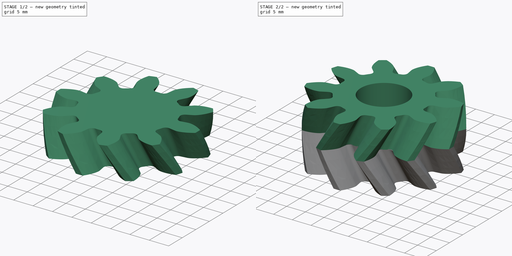
[diagram: build sequence overview — one tinted view per stage of 2, left to right]
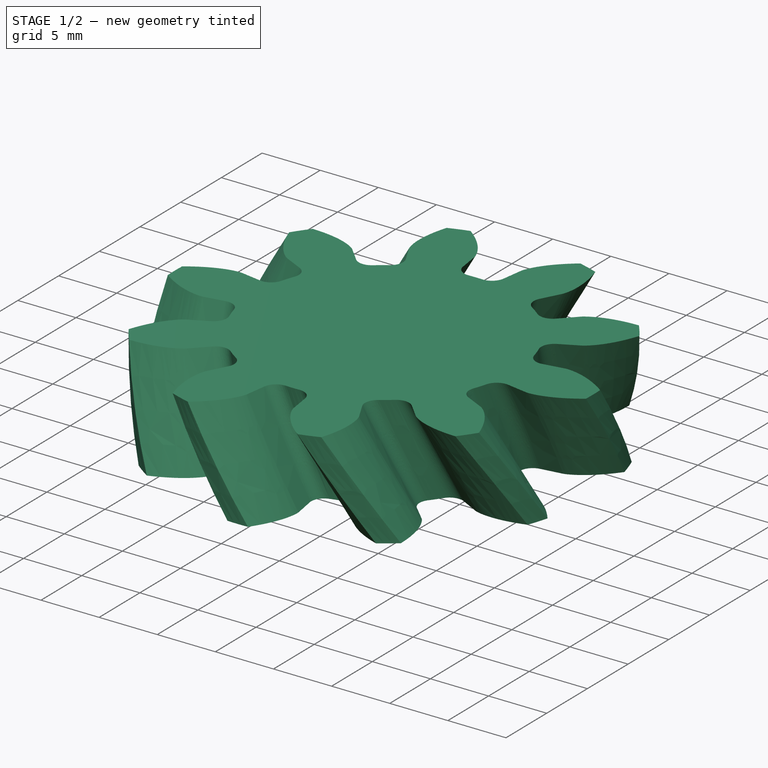
[diagram: stage 1 of 2 — iso view after this stage's code; geometry added in this stage tinted green]
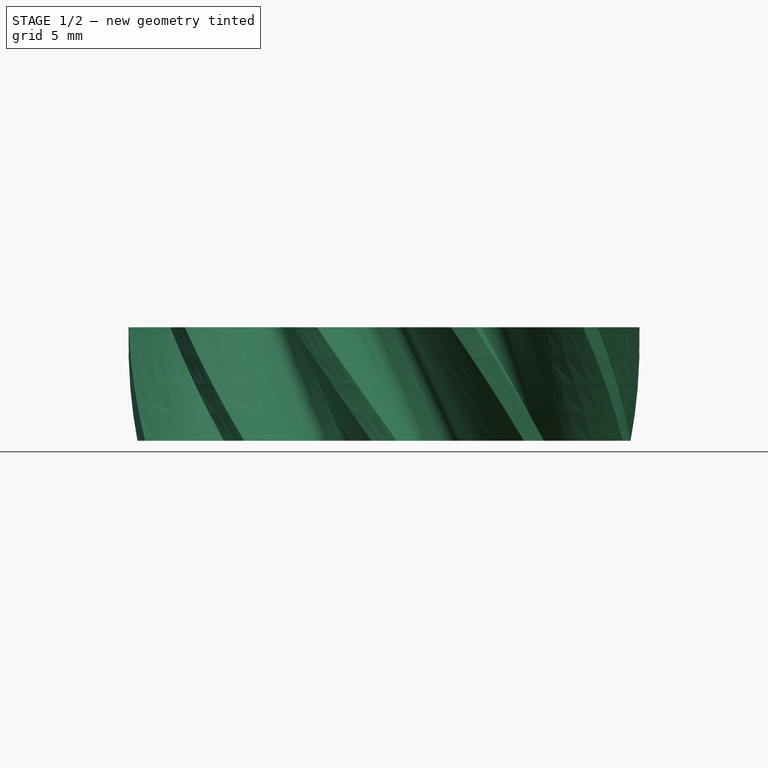
[diagram: stage 1 of 2 — front view after this stage's code; geometry added in this stage tinted green]
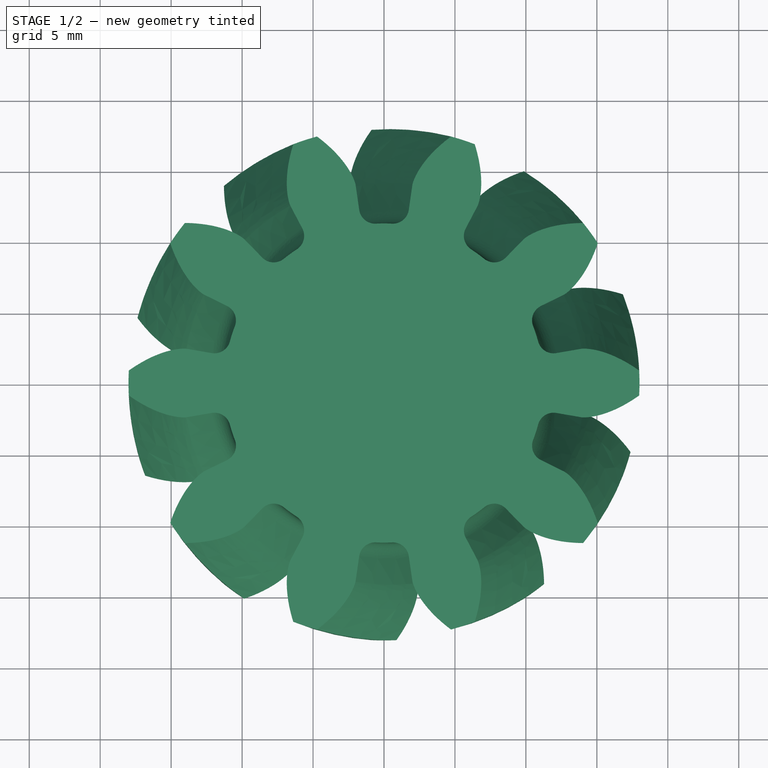
[diagram: stage 1 of 2 — top view after this stage's code; geometry added in this stage tinted green]
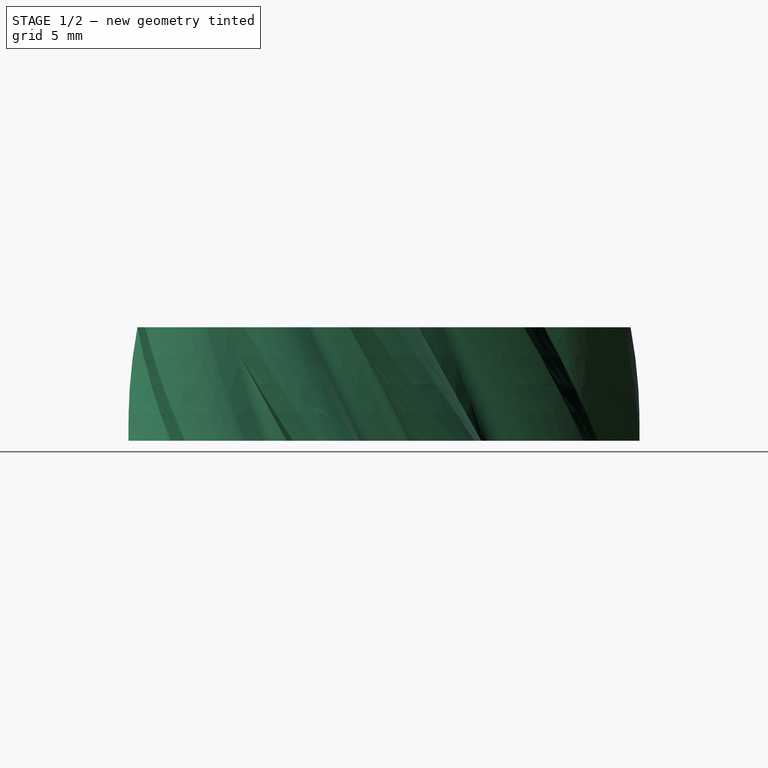
[diagram: stage 1 of 2 — right view after this stage's code; geometry added in this stage tinted green]
FCSTD DOCUMENT  (FreeCAD 0.16R6703 (Git))
Label: Chevron Gear Rotor 10 Th
License: FreeArt
LicenseURL: http://artlibre.org/licence/lal
objects: Part::Part2DObjectPython×5, Part::Loft×1, Part::Mirroring×1, Part::MultiFuse×1, Sketcher::SketchObject×1, PartDesign::Pocket×1
note: 11 computed .brp shape members not serialized (recipe doc carries the construction recipe); baked Part::Feature solids carry a one-line shape summary decoded from their .brp

FEATURE [Part::Part2DObjectPython] InvoluteGear  # Draft 2D object (typed FeaturePython)
  ExternalGear = true
  HighPrecision = true
  Modules = 3
  NumberOfTeeth = 10
  PressureAngle = 20
FEATURE [Part::Part2DObjectPython] Clone2D  label="Clone of InvoluteGear (2D)"  # Draft 2D object (typed FeaturePython)
  Objects = -> [InvoluteGear]
  Placement = pos=(0,0,2) rot=(0,0,1;0.07854rad)
  Scale = (1,1,1)
FEATURE [Part::Part2DObjectPython] Clone2D001  label="Clone of InvoluteGear (2D)001"  # Draft 2D object (typed FeaturePython)
  Objects = -> [InvoluteGear]
  Placement = pos=(0,0,4) rot=(0,0,1;0.15708rad)
  Scale = (1,1,1)
FEATURE [Part::Part2DObjectPython] Clone2D002  label="Clone of InvoluteGear (2D)002"  # Draft 2D object (typed FeaturePython)
  Objects = -> [InvoluteGear]
  Placement = pos=(0,0,6) rot=(0,0,1;0.235619rad)
  Scale = (1,1,1)
FEATURE [Part::Part2DObjectPython] Clone2D003  label="Clone of InvoluteGear (2D)003"  # Draft 2D object (typed FeaturePython)
  Objects = -> [InvoluteGear]
  Placement = pos=(0,0,8) rot=(0,0,1;0.314159rad)
  Scale = (1,1,1)
FEATURE [Part::Loft] Loft
  Closed = false
  Ruled = false
  Sections = -> [InvoluteGear,Clone2D,Clone2D001,Clone2D002,Clone2D003]
  Solid = true
FEATURE [Part::Mirroring] Part__Mirroring  label="Loft (Mirror #1)"
  Base = (0,0,0)
  Normal = (0,0,1)
  Source = -> Loft
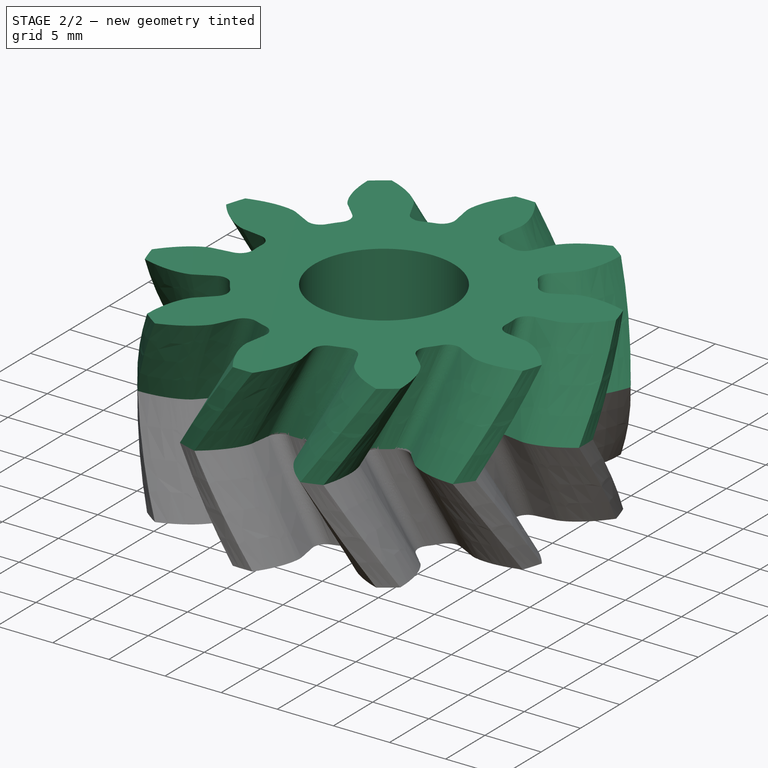
[diagram: stage 2 of 2 — iso view after this stage's code; geometry added in this stage tinted green]
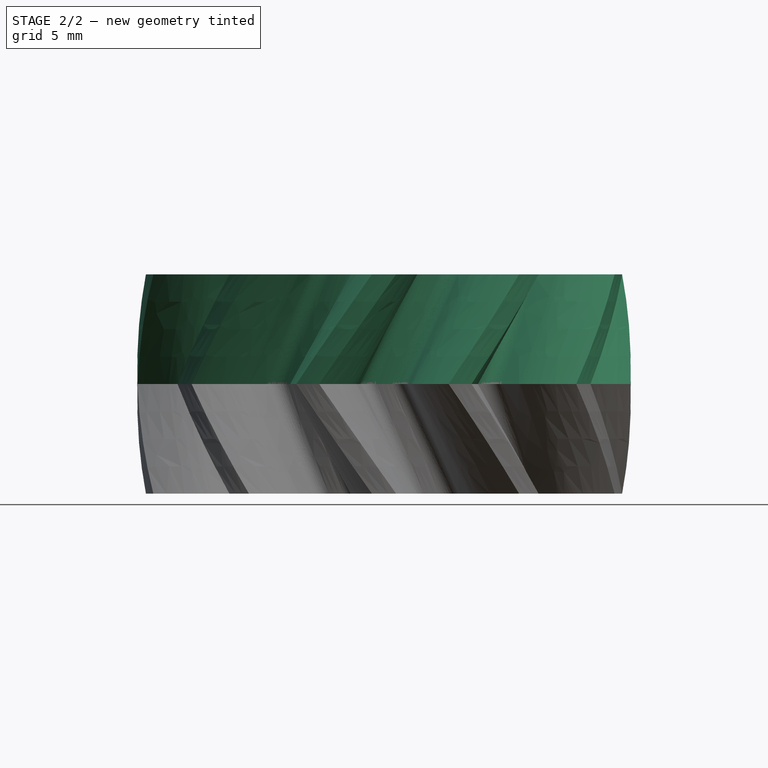
[diagram: stage 2 of 2 — front view after this stage's code; geometry added in this stage tinted green]
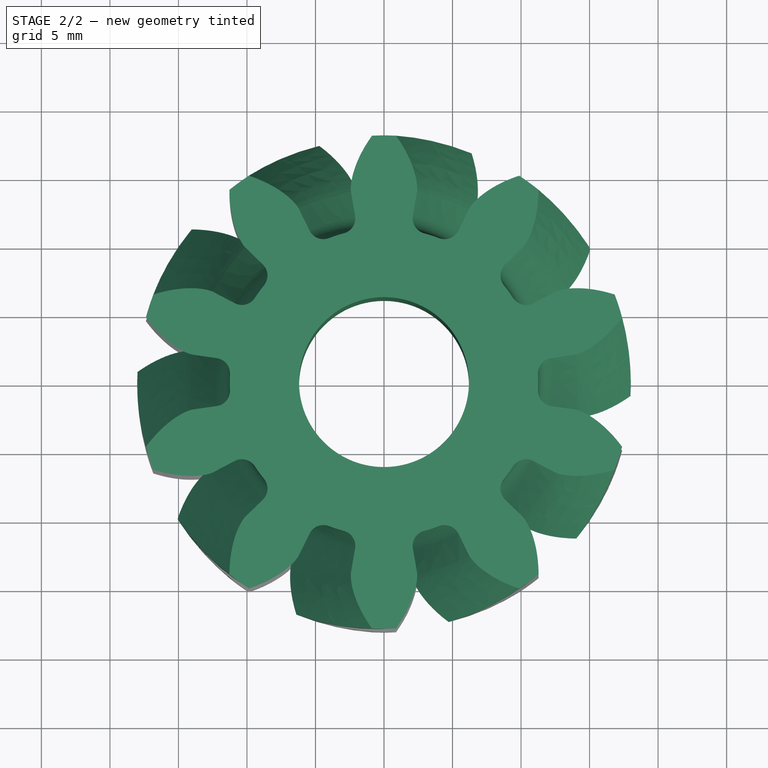
[diagram: stage 2 of 2 — top view after this stage's code; geometry added in this stage tinted green]
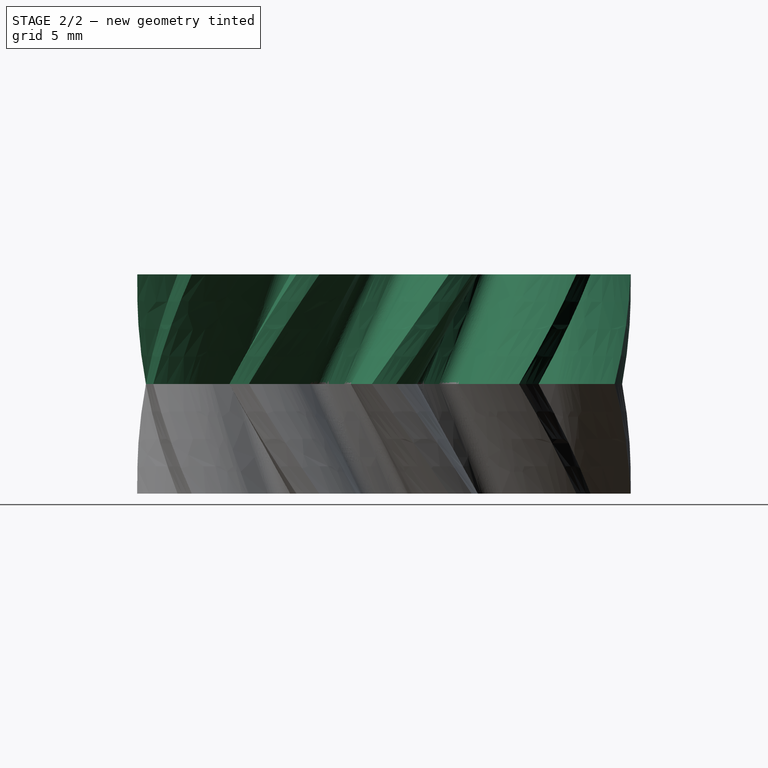
[diagram: stage 2 of 2 — right view after this stage's code; geometry added in this stage tinted green]
FEATURE [Part::MultiFuse] Fusion
  Shapes = -> [Part__Mirroring,Loft]
FEATURE [Sketcher::SketchObject] Sketch
  Placement = pos=(0,0,8) rot=(0,0,1;0rad)
  Support = -> Fusion [Face162]
  sketch-geometry (1):
    g0: Circle CenterX=0 CenterY=0 CenterZ=0 NormalX=0 NormalY=0 NormalZ=1 Radius=6.2
  constraints (2):
    c: Coincident(g0,g-1)
    c: Radius(g0) = 6.2
FEATURE [PartDesign::Pocket] Pocket
  Length = 16
  Sketch = -> Sketch
  Type = 0
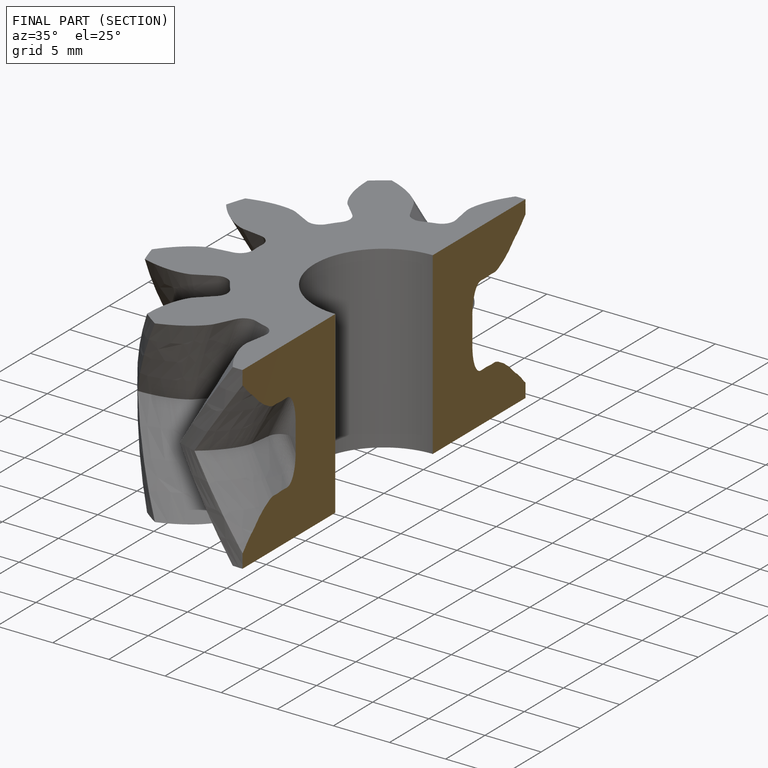
[diagram: finished part — half-section view (interior)]
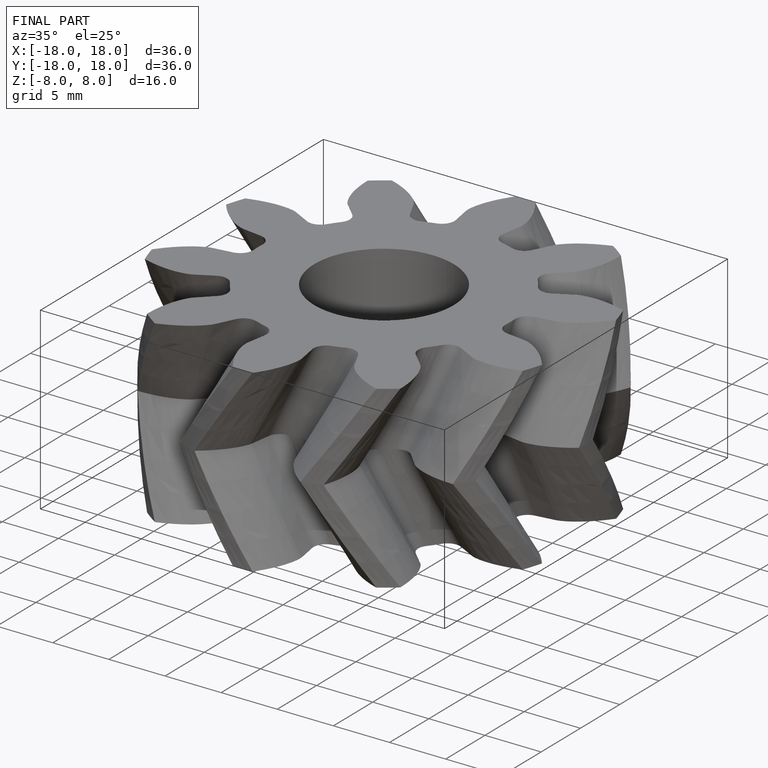
[diagram: finished part — iso view with bounding-box wireframe]
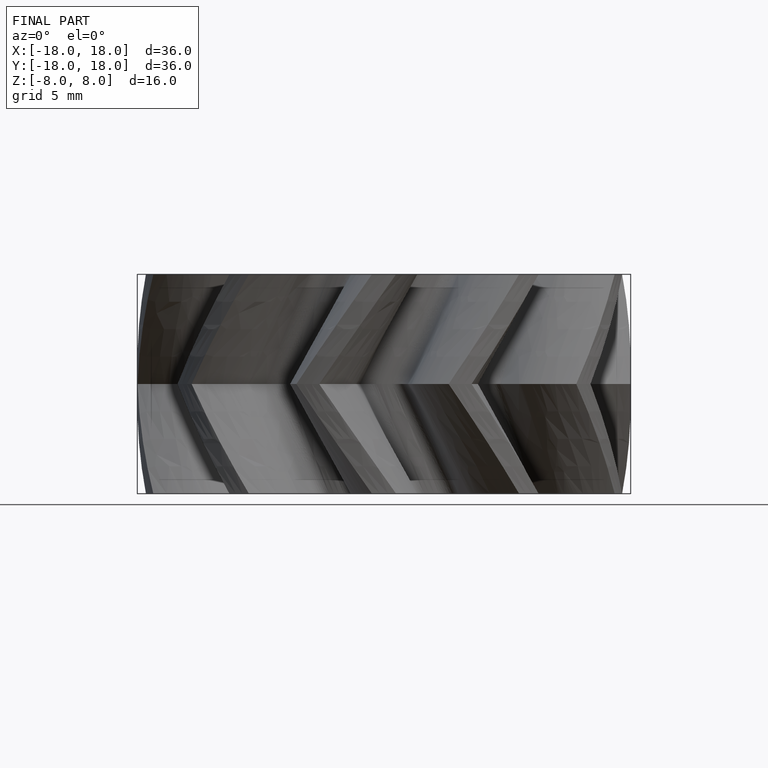
[diagram: finished part — front view with bounding-box wireframe]
